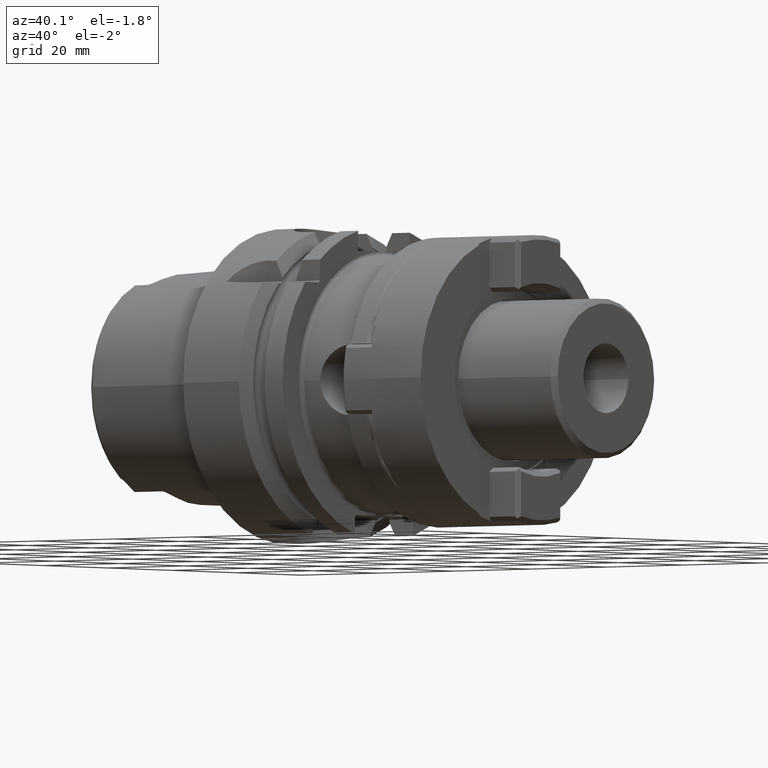
[diagram: clean part render]
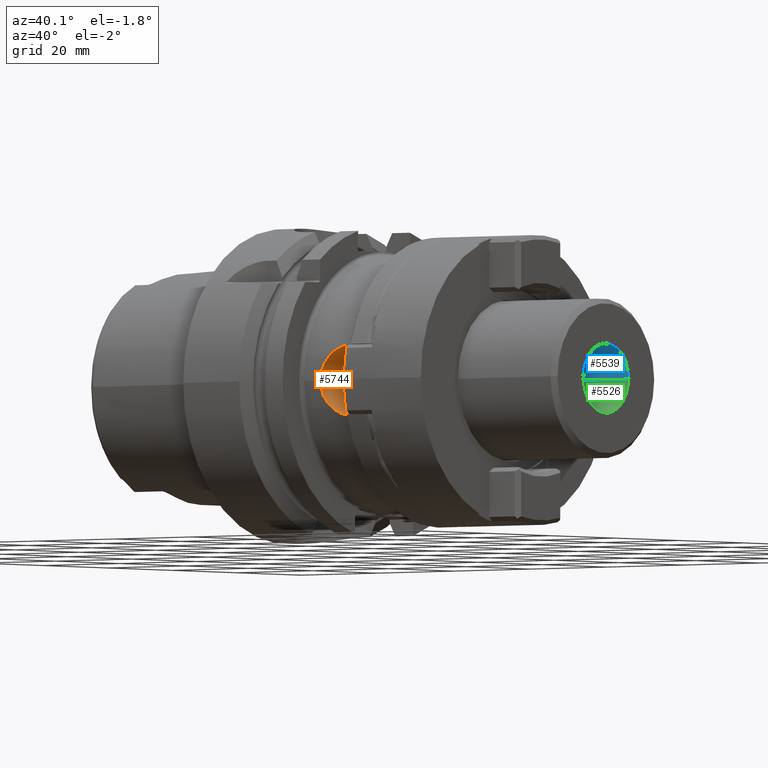
[diagram: same view with three faces highlighted in distinct colors, each labeled with its STEP entity id]
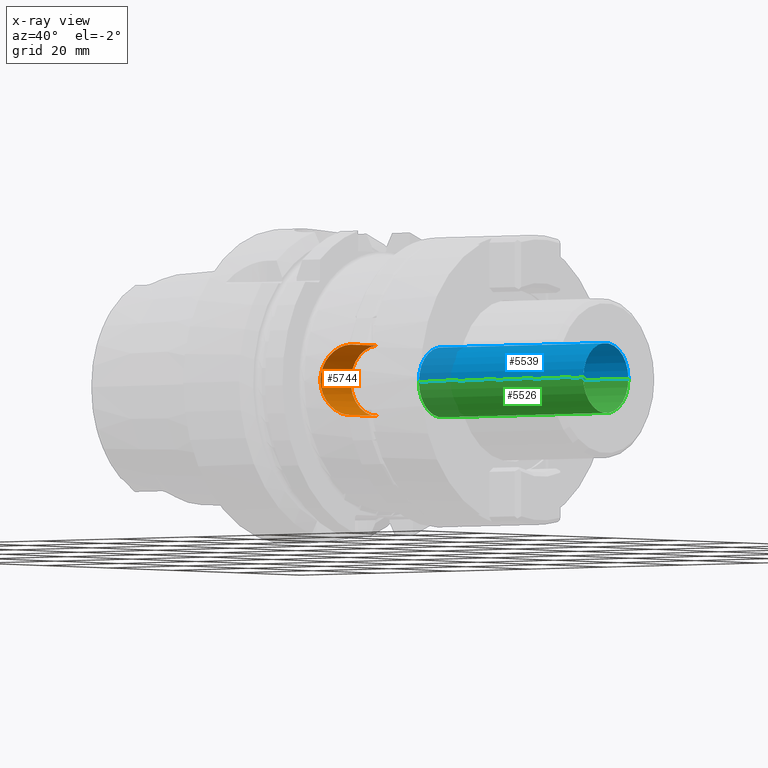
[diagram: x-ray of the same camera — body ghosted, the three highlighted faces saturated]
A machine part, auxiliary view with three faces highlighted in distinct colors.
The next image is the same camera in x-ray (body ghosted, the three faces saturated) — at least one of them is partly hidden behind the body in this view.
Their STEP definitions:

[orange] entity #5744 — the highlighted cylindrical surface (edge-blend (fillet) strip) has radius 7.05 mm, axis along (0, 1, 0).
#1619=DIRECTION('',(0.E0,1.E0,0.E0));
#1620=VECTOR('',#1619,8.464115399909E0);
#1621=CARTESIAN_POINT('',(3.805E1,-2.471411539991E1,7.05E0));
#1622=LINE('',#1621,#1620);
#1851=CARTESIAN_POINT('',(3.805E1,-1.625E1,0.E0));
#1852=DIRECTION('',(0.E0,1.E0,0.E0));
#1853=DIRECTION('',(0.E0,0.E0,-1.E0));
#1854=AXIS2_PLACEMENT_3D('',#1851,#1852,#1853);
#1946=CARTESIAN_POINT('',(3.805E1,-2.471411539991E1,7.05E0));
#1947=CARTESIAN_POINT('',(3.777022901774E1,-2.471411539991E1,7.05E0));
#1948=CARTESIAN_POINT('',(3.721030756298E1,-2.472364702954E1,7.016719625333E0));
#1949=CARTESIAN_POINT('',(3.637957764509E1,-2.476600825857E1,6.866471017103E0));
#1950=CARTESIAN_POINT('',(3.557490205782E1,-2.483358223860E1,6.619225847420E0));
#1951=CARTESIAN_POINT('',(3.480043542097E1,-2.492312947897E1,6.275388510670E0));
#1952=CARTESIAN_POINT('',(3.407484150606E1,-2.502855449079E1,5.843102682553E0));
#1953=CARTESIAN_POINT('',(3.339441526319E1,-2.514609145220E1,5.317536191147E0));
#1954=CARTESIAN_POINT('',(3.278048584327E1,-2.526756331376E1,4.710009215277E0));
#1955=CARTESIAN_POINT('',(3.224580543404E1,-2.538505731507E1,4.032051011763E0));
#1956=CARTESIAN_POINT('',(3.180357143031E1,-2.549030953952E1,3.305690577194E0));
#1957=CARTESIAN_POINT('',(3.144682689197E1,-2.558046012550E1,2.520105695081E0));
#1958=CARTESIAN_POINT('',(3.118790074897E1,-2.564884451498E1,1.692452546642E0));
#1959=CARTESIAN_POINT('',(3.103319352222E1,-2.569086242172E1,
8.431213860297E-1));
#1960=CARTESIAN_POINT('',(3.1E1,-2.57E1,2.796544385190E-1));
#1961=CARTESIAN_POINT('',(3.1E1,-2.57E1,1.848066823449E-14));
#1963=DIRECTION('',(0.E0,1.E0,0.E0));
#1964=VECTOR('',#1963,8.464115399909E0);
#1965=CARTESIAN_POINT('',(3.805E1,-2.471411539991E1,-7.05E0));
#1966=LINE('',#1965,#1964);
#1967=CARTESIAN_POINT('',(3.1E1,-2.57E1,1.848066823449E-14));
#1968=CARTESIAN_POINT('',(3.1E1,-2.57E1,-2.795801372047E-1));
#1969=CARTESIAN_POINT('',(3.103317711204E1,-2.569086696720E1,
-8.429368096308E-1));
#1970=CARTESIAN_POINT('',(3.118783532055E1,-2.564886208557E1,
-1.692190766534E0));
#1971=CARTESIAN_POINT('',(3.144676208242E1,-2.558047682999E1,
-2.519947409463E0));
#1972=CARTESIAN_POINT('',(3.180351891760E1,-2.549032228741E1,
-3.305596868182E0));
#1973=CARTESIAN_POINT('',(3.224578345499E1,-2.538506220133E1,
-4.032022819242E0));
#1974=CARTESIAN_POINT('',(3.278047266617E1,-2.526756605187E1,
-4.709994719722E0));
#1975=CARTESIAN_POINT('',(3.339441443098E1,-2.514609132397E1,
-5.317537876215E0));
#1976=CARTESIAN_POINT('',(3.407488450798E1,-2.502854737192E1,
-5.843133639826E0));
#1977=CARTESIAN_POINT('',(3.480049385647E1,-2.492312168690E1,
-6.275419323622E0));
#1978=CARTESIAN_POINT('',(3.557497226493E1,-2.483357540764E1,
-6.619251268491E0));
#1979=CARTESIAN_POINT('',(3.637960742029E1,-2.476600667403E1,
-6.866476566140E0));
#1980=CARTESIAN_POINT('',(3.721031627440E1,-2.472364687974E1,
-7.016720168394E0));
#1981=CARTESIAN_POINT('',(3.777023031922E1,-2.471411539991E1,-7.05E0));
#1982=CARTESIAN_POINT('',(3.805E1,-2.471411539991E1,-7.05E0));
#3551=CARTESIAN_POINT('',(3.805E1,-1.625E1,-7.05E0));
#3552=CARTESIAN_POINT('',(3.805E1,-1.625E1,7.05E0));
#3553=VERTEX_POINT('',#3551);
#3554=VERTEX_POINT('',#3552);
#3587=VERTEX_POINT('',#1946);
#3588=VERTEX_POINT('',#1961);
#3589=VERTEX_POINT('',#1982);
#5732=CARTESIAN_POINT('',(3.805E1,-2.9E1,0.E0));
#5733=DIRECTION('',(0.E0,1.E0,0.E0));
#5734=DIRECTION('',(1.E0,0.E0,0.E0));
#5735=AXIS2_PLACEMENT_3D('',#5732,#5733,#5734);
#5736=CYLINDRICAL_SURFACE('',#5735,7.05E0);
#5737=ORIENTED_EDGE('',*,*,#5250,.F.);
#5738=ORIENTED_EDGE('',*,*,#5374,.T.);
#5739=ORIENTED_EDGE('',*,*,#5627,.F.);
#5740=ORIENTED_EDGE('',*,*,#5640,.F.);
#5741=ORIENTED_EDGE('',*,*,#5226,.F.);
#5742=EDGE_LOOP('',(#5737,#5738,#5739,#5740,#5741));
#5743=FACE_OUTER_BOUND('',#5742,.F.);
#5744=ADVANCED_FACE('',(#5743),#5736,.F.);
#1855=CIRCLE('',#1854,7.05E0);
#1962=B_SPLINE_CURVE_WITH_KNOTS('',3,(#1946,#1947,#1948,#1949,#1950,#1951,#1952,
#1953,#1954,#1955,#1956,#1957,#1958,#1959,#1960,#1961),.UNSPECIFIED.,.F.,.F.,(4,
1,1,1,1,1,1,1,1,1,1,1,1,4),(0.E0,7.692307692308E-2,1.538461538462E-1,
2.307692307692E-1,3.076923076923E-1,3.846153846154E-1,4.615384615385E-1,
5.384615384615E-1,6.153846153846E-1,6.923076923077E-1,7.692307692308E-1,
8.461538461538E-1,9.230769230769E-1,1.E0),.UNSPECIFIED.);
#1983=B_SPLINE_CURVE_WITH_KNOTS('',3,(#1967,#1968,#1969,#1970,#1971,#1972,#1973,
#1974,#1975,#1976,#1977,#1978,#1979,#1980,#1981,#1982),.UNSPECIFIED.,.F.,.F.,(4,
1,1,1,1,1,1,1,1,1,1,1,1,4),(0.E0,7.692307692308E-2,1.538461538462E-1,
2.307692307692E-1,3.076923076923E-1,3.846153846154E-1,4.615384615385E-1,
5.384615384615E-1,6.153846153846E-1,6.923076923077E-1,7.692307692308E-1,
8.461538461538E-1,9.230769230769E-1,1.E0),.UNSPECIFIED.);
#5226=EDGE_CURVE('',#3588,#3589,#1983,.T.);
#5250=EDGE_CURVE('',#3587,#3588,#1962,.T.);
#5374=EDGE_CURVE('',#3587,#3554,#1622,.T.);
#5627=EDGE_CURVE('',#3553,#3554,#1855,.T.);
#5640=EDGE_CURVE('',#3589,#3553,#1966,.T.);

[blue] entity #5539 — the highlighted cylindrical surface (edge-blend (fillet) strip) has radius 7 mm, axis along (1, 0, 0).
#1782=CARTESIAN_POINT('',(8.4E1,0.E0,0.E0));
#1783=DIRECTION('',(1.E0,0.E0,0.E0));
#1784=DIRECTION('',(0.E0,1.E0,0.E0));
#1785=AXIS2_PLACEMENT_3D('',#1782,#1783,#1784);
#1792=DIRECTION('',(1.E0,0.E0,0.E0));
#1793=VECTOR('',#1792,4.3E1);
#1794=CARTESIAN_POINT('',(4.1E1,7.E0,0.E0));
#1795=LINE('',#1794,#1793);
#1796=CARTESIAN_POINT('',(4.1E1,0.E0,0.E0));
#1797=DIRECTION('',(-1.E0,0.E0,0.E0));
#1798=DIRECTION('',(0.E0,-1.E0,0.E0));
#1799=AXIS2_PLACEMENT_3D('',#1796,#1797,#1798);
#1801=DIRECTION('',(1.E0,0.E0,0.E0));
#1802=VECTOR('',#1801,4.3E1);
#1803=CARTESIAN_POINT('',(4.1E1,-7.E0,0.E0));
#1804=LINE('',#1803,#1802);
#3528=CARTESIAN_POINT('',(4.1E1,-7.E0,0.E0));
#3530=VERTEX_POINT('',#3528);
#3531=CARTESIAN_POINT('',(4.1E1,7.E0,0.E0));
#3532=VERTEX_POINT('',#3531);
#3533=CARTESIAN_POINT('',(8.4E1,-7.E0,0.E0));
#3534=CARTESIAN_POINT('',(8.4E1,7.E0,0.E0));
#3535=VERTEX_POINT('',#3533);
#3536=VERTEX_POINT('',#3534);
#5527=CARTESIAN_POINT('',(3.443367445015E1,0.E0,0.E0));
#5528=DIRECTION('',(1.E0,0.E0,0.E0));
#5529=DIRECTION('',(0.E0,-1.E0,0.E0));
#5530=AXIS2_PLACEMENT_3D('',#5527,#5528,#5529);
#5531=CYLINDRICAL_SURFACE('',#5530,7.E0);
#5532=ORIENTED_EDGE('',*,*,#5507,.F.);
#5533=ORIENTED_EDGE('',*,*,#5522,.F.);
#5535=ORIENTED_EDGE('',*,*,#5534,.F.);
#5536=ORIENTED_EDGE('',*,*,#5518,.T.);
#5537=EDGE_LOOP('',(#5532,#5533,#5535,#5536));
#5538=FACE_OUTER_BOUND('',#5537,.F.);
#5539=ADVANCED_FACE('',(#5538),#5531,.F.);
#1786=CIRCLE('',#1785,7.E0);
#1800=CIRCLE('',#1799,7.E0);
#5507=EDGE_CURVE('',#3536,#3535,#1786,.T.);
#5518=EDGE_CURVE('',#3530,#3535,#1804,.T.);
#5522=EDGE_CURVE('',#3532,#3536,#1795,.T.);
#5534=EDGE_CURVE('',#3530,#3532,#1800,.T.);

[green] entity #5526 — the highlighted cylindrical surface (edge-blend (fillet) strip) has radius 7 mm, axis along (1, 0, 0).
#1777=CARTESIAN_POINT('',(8.4E1,0.E0,0.E0));
#1778=DIRECTION('',(1.E0,0.E0,0.E0));
#1779=DIRECTION('',(0.E0,-1.E0,0.E0));
#1780=AXIS2_PLACEMENT_3D('',#1777,#1778,#1779);
#1787=CARTESIAN_POINT('',(4.1E1,0.E0,0.E0));
#1788=DIRECTION('',(1.E0,0.E0,0.E0));
#1789=DIRECTION('',(0.E0,-1.E0,0.E0));
#1790=AXIS2_PLACEMENT_3D('',#1787,#1788,#1789);
#1792=DIRECTION('',(1.E0,0.E0,0.E0));
#1793=VECTOR('',#1792,4.3E1);
#1794=CARTESIAN_POINT('',(4.1E1,7.E0,0.E0));
#1795=LINE('',#1794,#1793);
#1801=DIRECTION('',(1.E0,0.E0,0.E0));
#1802=VECTOR('',#1801,4.3E1);
#1803=CARTESIAN_POINT('',(4.1E1,-7.E0,0.E0));
#1804=LINE('',#1803,#1802);
#3528=CARTESIAN_POINT('',(4.1E1,-7.E0,0.E0));
#3530=VERTEX_POINT('',#3528);
#3531=CARTESIAN_POINT('',(4.1E1,7.E0,0.E0));
#3532=VERTEX_POINT('',#3531);
#3533=CARTESIAN_POINT('',(8.4E1,-7.E0,0.E0));
#3534=CARTESIAN_POINT('',(8.4E1,7.E0,0.E0));
#3535=VERTEX_POINT('',#3533);
#3536=VERTEX_POINT('',#3534);
#5512=CARTESIAN_POINT('',(3.443367445015E1,0.E0,0.E0));
#5513=DIRECTION('',(1.E0,0.E0,0.E0));
#5514=DIRECTION('',(0.E0,-1.E0,0.E0));
#5515=AXIS2_PLACEMENT_3D('',#5512,#5513,#5514);
#5516=CYLINDRICAL_SURFACE('',#5515,7.E0);
#5517=ORIENTED_EDGE('',*,*,#5505,.F.);
#5519=ORIENTED_EDGE('',*,*,#5518,.F.);
#5521=ORIENTED_EDGE('',*,*,#5520,.T.);
#5523=ORIENTED_EDGE('',*,*,#5522,.T.);
#5524=EDGE_LOOP('',(#5517,#5519,#5521,#5523));
#5525=FACE_OUTER_BOUND('',#5524,.F.);
#5526=ADVANCED_FACE('',(#5525),#5516,.F.);
#1781=CIRCLE('',#1780,7.E0);
#1791=CIRCLE('',#1790,7.E0);
#5505=EDGE_CURVE('',#3535,#3536,#1781,.T.);
#5518=EDGE_CURVE('',#3530,#3535,#1804,.T.);
#5520=EDGE_CURVE('',#3530,#3532,#1791,.T.);
#5522=EDGE_CURVE('',#3532,#3536,#1795,.T.);